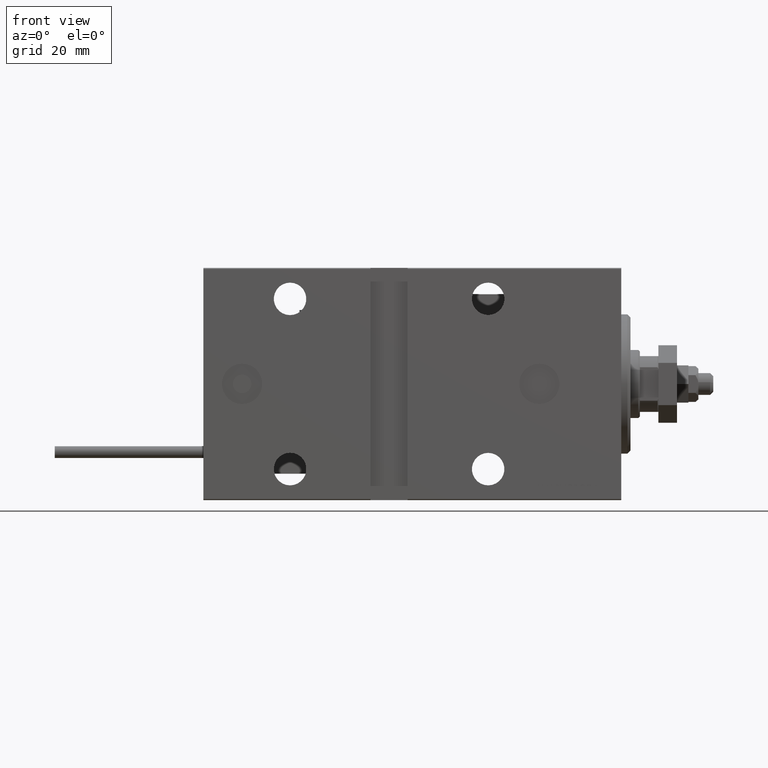
[diagram: clean part render]
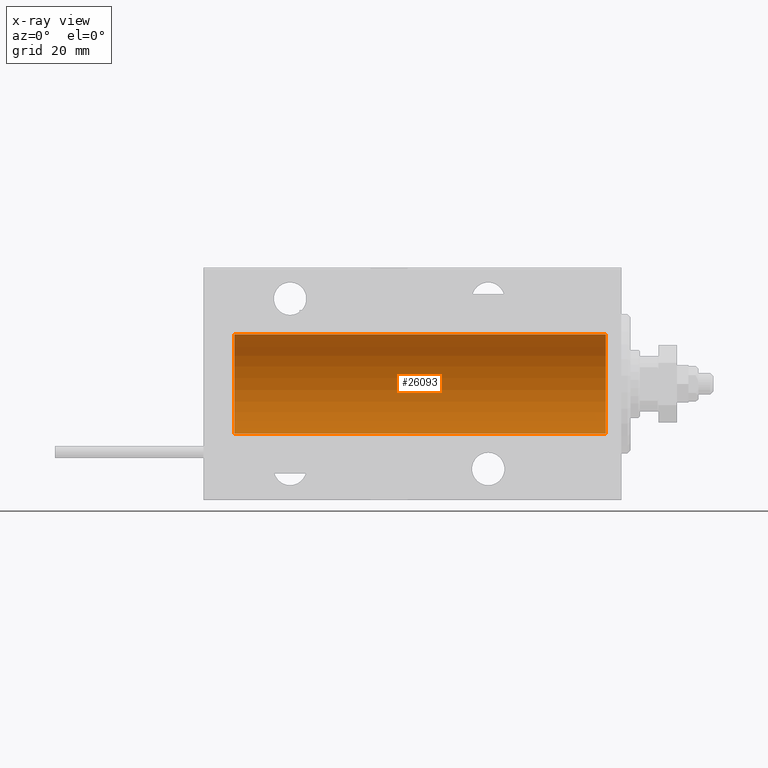
[diagram: x-ray — body ghosted, one internal face saturated and labeled with its STEP entity id]
A machine part, front view, then the same camera in x-ray: the body is ghosted and one INTERNAL B-rep face — a face not visible from any outside direction — is saturated and labeled: STEP entity #26093.
In plain terms, the highlighted cylindrical surface (partial cylindrical patch) has radius 16 mm, axis along (1, 0, -0).
Its self-contained STEP definition (entity closure, byte-faithful):
#1259 = EDGE_CURVE ( 'NONE', #48649, #19061, #4724, .T. ) ;
#1501 = CARTESIAN_POINT ( 'NONE',  ( 5.000000000000004441, 1.959434878635765131E-15, -16.00000000000000000 ) ) ;
#2767 = CARTESIAN_POINT ( 'NONE',  ( 125.0000000000000000, 0.000000000000000000, 0.000000000000000000 ) ) ;
#3741 = CARTESIAN_POINT ( 'NONE',  ( 125.0000000000000000, 0.000000000000000000, 0.000000000000000000 ) ) ;
#4724 = CIRCLE ( 'NONE', #8764, 16.00000000000000000 ) ;
#4800 = ORIENTED_EDGE ( 'NONE', *, *, #36872, .F. ) ;
#8764 = AXIS2_PLACEMENT_3D ( 'NONE', #14628, #26948, #26458 ) ;
#10584 = ORIENTED_EDGE ( 'NONE', *, *, #11491, .F. ) ;
#11075 = DIRECTION ( 'NONE',  ( 0.000000000000000000, 0.000000000000000000, 1.000000000000000000 ) ) ;
#11491 = EDGE_CURVE ( 'NONE', #20107, #40669, #22683, .T. ) ;
#12970 = DIRECTION ( 'NONE',  ( -1.000000000000000000, -0.000000000000000000, -0.000000000000000000 ) ) ;
#13550 = AXIS2_PLACEMENT_3D ( 'NONE', #2767, #45561, #11075 ) ;
#14628 = CARTESIAN_POINT ( 'NONE',  ( 5.000000000000004441, 0.000000000000000000, 0.000000000000000000 ) ) ;
#16911 = CARTESIAN_POINT ( 'NONE',  ( 125.0000000000000000, 0.000000000000000000, 16.00000000000000000 ) ) ;
#17728 = CARTESIAN_POINT ( 'NONE',  ( 125.0000000000000000, 1.959434878635765131E-15, -16.00000000000000000 ) ) ;
#18778 = EDGE_LOOP ( 'NONE', ( #10584, #44042, #40571, #4800 ) ) ;
#19061 = VERTEX_POINT ( 'NONE', #41668 ) ;
#19111 = DIRECTION ( 'NONE',  ( -1.000000000000000000, 0.000000000000000000, 0.000000000000000000 ) ) ;
#20107 = VERTEX_POINT ( 'NONE', #37612 ) ;
#20457 = DIRECTION ( 'NONE',  ( -1.000000000000000000, -0.000000000000000000, -0.000000000000000000 ) ) ;
#21781 = LINE ( 'NONE', #17728, #35218 ) ;
#22683 = CIRCLE ( 'NONE', #47598, 16.00000000000000000 ) ;
#25797 = CARTESIAN_POINT ( 'NONE',  ( 125.0000000000000000, 0.000000000000000000, 16.00000000000000000 ) ) ;
#26093 = ADVANCED_FACE ( 'NONE', ( #38041 ), #37794, .F. ) ;
#26458 = DIRECTION ( 'NONE',  ( 0.000000000000000000, 0.000000000000000000, 1.000000000000000000 ) ) ;
#26948 = DIRECTION ( 'NONE',  ( -1.000000000000000000, 0.000000000000000000, 0.000000000000000000 ) ) ;
#35218 = VECTOR ( 'NONE', #12970, 1000.000000000000000 ) ;
#35570 = LINE ( 'NONE', #16911, #39815 ) ;
#36872 = EDGE_CURVE ( 'NONE', #40669, #19061, #35570, .T. ) ;
#37612 = CARTESIAN_POINT ( 'NONE',  ( 125.0000000000000000, 1.959434878635765131E-15, -16.00000000000000000 ) ) ;
#37794 = CYLINDRICAL_SURFACE ( 'NONE', #13550, 16.00000000000000000 ) ;
#38041 = FACE_OUTER_BOUND ( 'NONE', #18778, .T. ) ;
#39815 = VECTOR ( 'NONE', #20457, 1000.000000000000000 ) ;
#40571 = ORIENTED_EDGE ( 'NONE', *, *, #1259, .T. ) ;
#40669 = VERTEX_POINT ( 'NONE', #25797 ) ;
#41668 = CARTESIAN_POINT ( 'NONE',  ( 5.000000000000004441, 0.000000000000000000, 16.00000000000000000 ) ) ;
#44042 = ORIENTED_EDGE ( 'NONE', *, *, #49307, .T. ) ;
#45561 = DIRECTION ( 'NONE',  ( -1.000000000000000000, -0.000000000000000000, -0.000000000000000000 ) ) ;
#47598 = AXIS2_PLACEMENT_3D ( 'NONE', #3741, #19111, #49817 ) ;
#48649 = VERTEX_POINT ( 'NONE', #1501 ) ;
#49307 = EDGE_CURVE ( 'NONE', #20107, #48649, #21781, .T. ) ;
#49817 = DIRECTION ( 'NONE',  ( 0.000000000000000000, 0.000000000000000000, 1.000000000000000000 ) ) ;